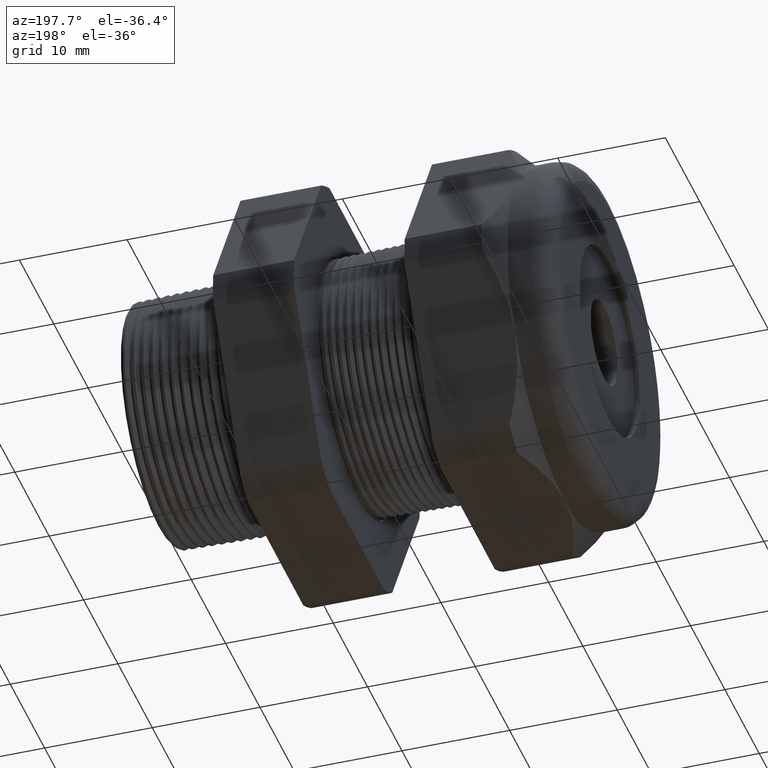
[diagram: clean part render]
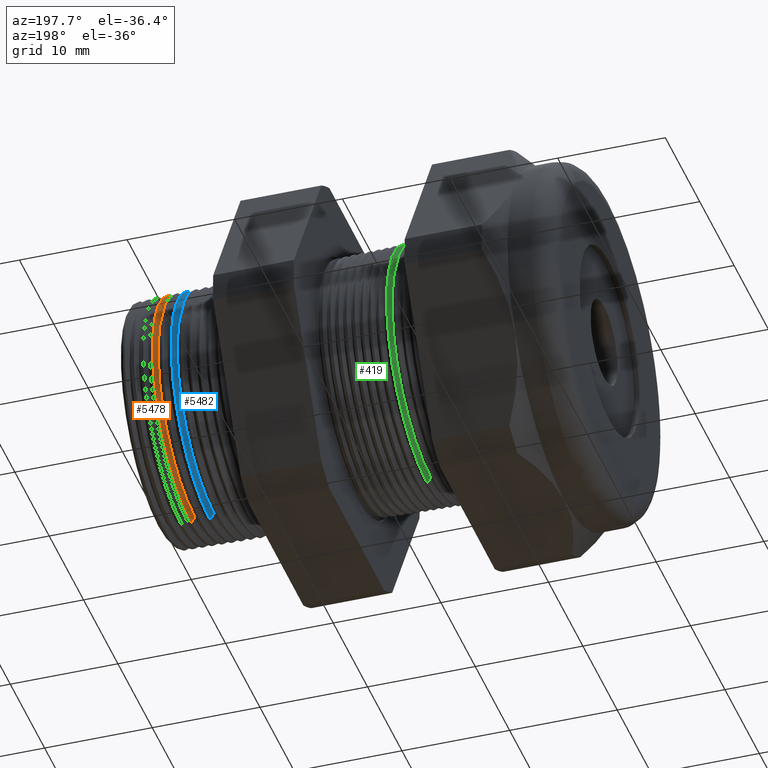
[diagram: same view with three faces highlighted in distinct colors, each labeled with its STEP entity id]
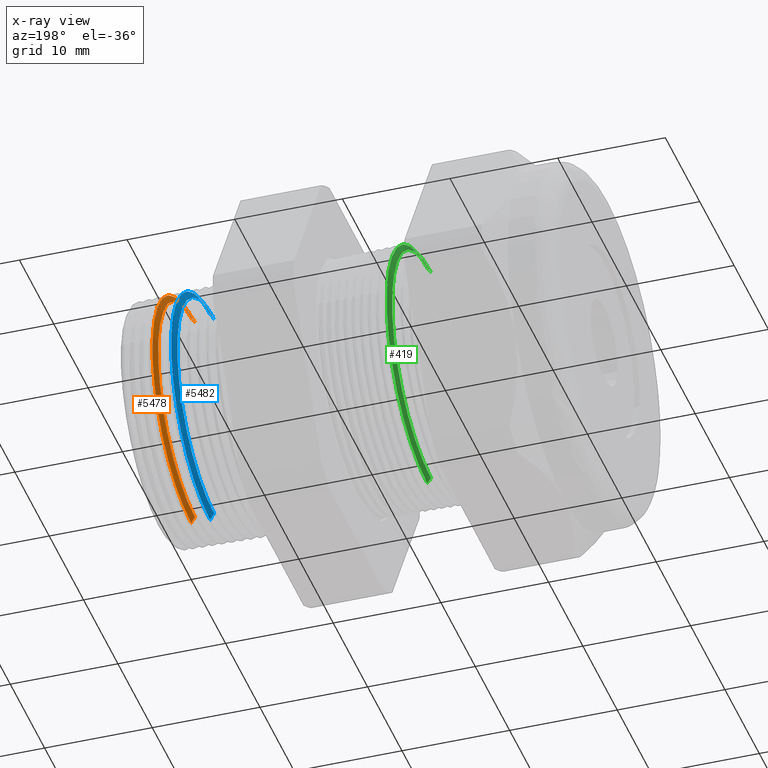
[diagram: x-ray of the same camera — body ghosted, the three highlighted faces saturated]
A machine part, auxiliary view with three faces highlighted in distinct colors.
The next image is the same camera in x-ray (body ghosted, the three faces saturated) — at least one of them is partly hidden behind the body in this view.
Their STEP definitions:

[orange] entity #5478 — the highlighted conical surface has half-angle 58.5 deg.
#3663 = CARTESIAN_POINT ( 'NONE',  ( -0.01347073567907519600, 5.299305649514591300E-017, -0.4212184895733915900 ) ) ;
#3755 = DIRECTION ( 'NONE',  ( 0.5224985647159347000, 0.0000000000000000000, -0.8526401643541008400 ) ) ;
#3756 = VECTOR ( 'NONE', #3755, 39.37007874015748100 ) ;
#3757 = CARTESIAN_POINT ( 'NONE',  ( -0.01347073567907519600, 0.0000000000000000000, -0.4212184895733915900 ) ) ;
#3758 = LINE ( 'NONE', #3757, #3756 ) ;
#3759 = CARTESIAN_POINT ( 'NONE',  ( 0.0002070154264371303800, 5.431780665247218800E-017, -0.4435385507910555300 ) ) ;
#3760 = DIRECTION ( 'NONE',  ( 0.0000000000000000000, 0.0000000000000000000, -1.000000000000000000 ) ) ;
#3761 = DIRECTION ( 'NONE',  ( -1.000000000000000000, 0.0000000000000000000, 0.0000000000000000000 ) ) ;
#3762 = CARTESIAN_POINT ( 'NONE',  ( 0.0002070154264371303800, 0.0000000000000000000, 0.0000000000000000000 ) ) ;
#3763 = AXIS2_PLACEMENT_3D ( 'NONE', #3762, #3761, #3760 ) ;
#3764 = CIRCLE ( 'NONE', #3763, 0.4435385507910555300 ) ;
#3765 = CARTESIAN_POINT ( 'NONE',  ( 0.0002070154264371303800, 0.0000000000000000000, 0.4435385507910555300 ) ) ;
#3766 = DIRECTION ( 'NONE',  ( 0.5224985647159347000, 1.044183048100722800E-016, 0.8526401643541008400 ) ) ;
#3767 = VECTOR ( 'NONE', #3766, 39.37007874015748100 ) ;
#3768 = CARTESIAN_POINT ( 'NONE',  ( -0.01347073567907519600, 5.158438749977368000E-017, 0.4212184895733915900 ) ) ;
#3769 = LINE ( 'NONE', #3768, #3767 ) ;
#3782 = CARTESIAN_POINT ( 'NONE',  ( -0.01347073567907519600, 0.0000000000000000000, 0.4212184895733915900 ) ) ;
#3783 = DIRECTION ( 'NONE',  ( 0.0000000000000000000, 0.0000000000000000000, -1.000000000000000000 ) ) ;
#3784 = DIRECTION ( 'NONE',  ( 1.000000000000000000, 0.0000000000000000000, 0.0000000000000000000 ) ) ;
#3785 = CARTESIAN_POINT ( 'NONE',  ( -0.01347073567907519600, 0.0000000000000000000, 0.0000000000000000000 ) ) ;
#3786 = AXIS2_PLACEMENT_3D ( 'NONE', #3785, #3784, #3783 ) ;
#3787 = CIRCLE ( 'NONE', #3786, 0.4212184895733915900 ) ;
#3858 = DIRECTION ( 'NONE',  ( 0.0000000000000000000, 0.0000000000000000000, -1.000000000000000000 ) ) ;
#3859 = DIRECTION ( 'NONE',  ( 1.000000000000000000, 0.0000000000000000000, 0.0000000000000000000 ) ) ;
#3860 = CARTESIAN_POINT ( 'NONE',  ( -0.01347073567907519600, 0.0000000000000000000, 0.0000000000000000000 ) ) ;
#3861 = AXIS2_PLACEMENT_3D ( 'NONE', #3860, #3859, #3858 ) ;
#3862 = CONICAL_SURFACE ( 'NONE', #3861, 0.4212184895733915900, 1.021017612416699400 ) ;
#3867 = FACE_OUTER_BOUND ( 'NONE', #5431, .T. ) ;
#5370 = VERTEX_POINT ( 'NONE', #3663 ) ;
#5420 = ORIENTED_EDGE ( 'NONE', *, *, #5421, .T. ) ;
#5421 = EDGE_CURVE ( 'NONE', #5444, #5422, #3769, .T. ) ;
#5422 = VERTEX_POINT ( 'NONE', #3765 ) ;
#5423 = ORIENTED_EDGE ( 'NONE', *, *, #5424, .T. ) ;
#5424 = EDGE_CURVE ( 'NONE', #5422, #5425, #3764, .T. ) ;
#5425 = VERTEX_POINT ( 'NONE', #3759 ) ;
#5426 = ORIENTED_EDGE ( 'NONE', *, *, #5427, .F. ) ;
#5427 = EDGE_CURVE ( 'NONE', #5370, #5425, #3758, .T. ) ;
#5431 = EDGE_LOOP ( 'NONE', ( #5442, #5420, #5423, #5426 ) ) ;
#5442 = ORIENTED_EDGE ( 'NONE', *, *, #5443, .T. ) ;
#5443 = EDGE_CURVE ( 'NONE', #5370, #5444, #3787, .T. ) ;
#5444 = VERTEX_POINT ( 'NONE', #3782 ) ;
#5478 = ADVANCED_FACE ( 'NONE', ( #3867 ), #3862, .T. ) ;

[blue] entity #5482 — the highlighted conical surface has half-angle 58.5 deg.
#3650 = CIRCLE ( 'NONE', #3713, 0.4453426159128154900 ) ;
#3651 = CARTESIAN_POINT ( 'NONE',  ( -0.06868745204509199600, 0.0000000000000000000, 0.4453426159128154300 ) ) ;
#3652 = DIRECTION ( 'NONE',  ( 0.5224985647159347000, 1.044183048100722800E-016, 0.8526401643541008400 ) ) ;
#3653 = VECTOR ( 'NONE', #3652, 39.37007874015748100 ) ;
#3654 = CARTESIAN_POINT ( 'NONE',  ( -0.08347073567907520300, 5.158438749977368000E-017, 0.4212184895733915900 ) ) ;
#3655 = LINE ( 'NONE', #3654, #3653 ) ;
#3656 = CARTESIAN_POINT ( 'NONE',  ( -0.08347073567907520300, 0.0000000000000000000, 0.4212184895733915900 ) ) ;
#3657 = CARTESIAN_POINT ( 'NONE',  ( -0.08347073567907520300, 5.310691508083136200E-017, -0.4212184895733915900 ) ) ;
#3658 = DIRECTION ( 'NONE',  ( 0.0000000000000000000, 0.0000000000000000000, -1.000000000000000000 ) ) ;
#3659 = DIRECTION ( 'NONE',  ( 1.000000000000000000, 0.0000000000000000000, 0.0000000000000000000 ) ) ;
#3660 = CARTESIAN_POINT ( 'NONE',  ( -0.08347073567907520300, 0.0000000000000000000, 0.0000000000000000000 ) ) ;
#3661 = AXIS2_PLACEMENT_3D ( 'NONE', #3660, #3659, #3658 ) ;
#3662 = CIRCLE ( 'NONE', #3661, 0.4212184895733915900 ) ;
#3705 = DIRECTION ( 'NONE',  ( 0.5224985647159347000, 0.0000000000000000000, -0.8526401643541008400 ) ) ;
#3706 = VECTOR ( 'NONE', #3705, 39.37007874015748100 ) ;
#3707 = CARTESIAN_POINT ( 'NONE',  ( -0.08347073567907520300, 0.0000000000000000000, -0.4212184895733915900 ) ) ;
#3708 = LINE ( 'NONE', #3707, #3706 ) ;
#3709 = CARTESIAN_POINT ( 'NONE',  ( -0.06868745204509199600, 5.453874091015385300E-017, -0.4453426159128154300 ) ) ;
#3710 = DIRECTION ( 'NONE',  ( 0.0000000000000000000, 0.0000000000000000000, -1.000000000000000000 ) ) ;
#3711 = DIRECTION ( 'NONE',  ( -1.000000000000000000, 0.0000000000000000000, 0.0000000000000000000 ) ) ;
#3712 = CARTESIAN_POINT ( 'NONE',  ( -0.06868745204509199600, 0.0000000000000000000, 0.0000000000000000000 ) ) ;
#3713 = AXIS2_PLACEMENT_3D ( 'NONE', #3712, #3711, #3710 ) ;
#3846 = DIRECTION ( 'NONE',  ( 0.0000000000000000000, 0.0000000000000000000, -1.000000000000000000 ) ) ;
#3847 = DIRECTION ( 'NONE',  ( 1.000000000000000000, 0.0000000000000000000, 0.0000000000000000000 ) ) ;
#3848 = CARTESIAN_POINT ( 'NONE',  ( -0.08347073567907520300, 0.0000000000000000000, 0.0000000000000000000 ) ) ;
#3849 = AXIS2_PLACEMENT_3D ( 'NONE', #3848, #3847, #3846 ) ;
#3851 = CONICAL_SURFACE ( 'NONE', #3849, 0.4212184895733915900, 1.021017612416699400 ) ;
#3852 = FACE_OUTER_BOUND ( 'NONE', #5405, .T. ) ;
#5371 = ORIENTED_EDGE ( 'NONE', *, *, #5372, .T. ) ;
#5372 = EDGE_CURVE ( 'NONE', #5373, #5374, #3662, .T. ) ;
#5373 = VERTEX_POINT ( 'NONE', #3657 ) ;
#5374 = VERTEX_POINT ( 'NONE', #3656 ) ;
#5375 = ORIENTED_EDGE ( 'NONE', *, *, #5376, .T. ) ;
#5376 = EDGE_CURVE ( 'NONE', #5374, #5377, #3655, .T. ) ;
#5377 = VERTEX_POINT ( 'NONE', #3651 ) ;
#5378 = ORIENTED_EDGE ( 'NONE', *, *, #5379, .T. ) ;
#5379 = EDGE_CURVE ( 'NONE', #5377, #5380, #3650, .T. ) ;
#5380 = VERTEX_POINT ( 'NONE', #3709 ) ;
#5381 = ORIENTED_EDGE ( 'NONE', *, *, #5382, .F. ) ;
#5382 = EDGE_CURVE ( 'NONE', #5373, #5380, #3708, .T. ) ;
#5405 = EDGE_LOOP ( 'NONE', ( #5371, #5375, #5378, #5381 ) ) ;
#5482 = ADVANCED_FACE ( 'NONE', ( #3852 ), #3851, .T. ) ;

[green] entity #419 — the highlighted conical surface has half-angle 58.5 deg.
#45 = EDGE_CURVE ( 'NONE', #46, #414, #564, .T. ) ;
#46 = VERTEX_POINT ( 'NONE', #559 ) ;
#48 = VERTEX_POINT ( 'NONE', #617 ) ;
#49 = ORIENTED_EDGE ( 'NONE', *, *, #45, .T. ) ;
#62 = VERTEX_POINT ( 'NONE', #594 ) ;
#72 = ORIENTED_EDGE ( 'NONE', *, *, #402, .T. ) ;
#402 = EDGE_CURVE ( 'NONE', #48, #62, #1262, .T. ) ;
#410 = ORIENTED_EDGE ( 'NONE', *, *, #413, .F. ) ;
#412 = EDGE_CURVE ( 'NONE', #62, #46, #1304, .T. ) ;
#413 = EDGE_CURVE ( 'NONE', #48, #414, #1300, .T. ) ;
#414 = VERTEX_POINT ( 'NONE', #1296 ) ;
#415 = ORIENTED_EDGE ( 'NONE', *, *, #412, .T. ) ;
#418 = EDGE_LOOP ( 'NONE', ( #72, #415, #49, #410 ) ) ;
#419 = ADVANCED_FACE ( 'NONE', ( #1289 ), #1288, .T. ) ;
#559 = CARTESIAN_POINT ( 'NONE',  ( -0.8633525379665555300, 0.0000000000000000000, 0.4661516535265203800 ) ) ;
#560 = DIRECTION ( 'NONE',  ( 0.0000000000000000000, 0.0000000000000000000, -1.000000000000000000 ) ) ;
#561 = DIRECTION ( 'NONE',  ( -1.000000000000000000, 0.0000000000000000000, 0.0000000000000000000 ) ) ;
#562 = CARTESIAN_POINT ( 'NONE',  ( -0.8633525379665555300, 0.0000000000000000000, 0.0000000000000000000 ) ) ;
#563 = AXIS2_PLACEMENT_3D ( 'NONE', #562, #561, #560 ) ;
#564 = CIRCLE ( 'NONE', #563, 0.4661516535265203300 ) ;
#594 = CARTESIAN_POINT ( 'NONE',  ( -0.8765405736958171700, 0.0000000000000000000, 0.4446307351718083400 ) ) ;
#617 = CARTESIAN_POINT ( 'NONE',  ( -0.8765405736958171700, 5.580979396460794700E-017, -0.4446307351718083400 ) ) ;
#1259 = DIRECTION ( 'NONE',  ( 0.0000000000000000000, 0.0000000000000000000, -1.000000000000000000 ) ) ;
#1260 = DIRECTION ( 'NONE',  ( 1.000000000000000000, 0.0000000000000000000, 0.0000000000000000000 ) ) ;
#1261 = AXIS2_PLACEMENT_3D ( 'NONE', #1267, #1260, #1259 ) ;
#1262 = CIRCLE ( 'NONE', #1261, 0.4446307351718083400 ) ;
#1267 = CARTESIAN_POINT ( 'NONE',  ( -0.8765405736958171700, 0.0000000000000000000, 0.0000000000000000000 ) ) ;
#1283 = DIRECTION ( 'NONE',  ( 0.0000000000000000000, 0.0000000000000000000, -1.000000000000000000 ) ) ;
#1284 = DIRECTION ( 'NONE',  ( 1.000000000000000000, 0.0000000000000000000, 0.0000000000000000000 ) ) ;
#1285 = CARTESIAN_POINT ( 'NONE',  ( -0.8765405736958171700, 0.0000000000000000000, 0.0000000000000000000 ) ) ;
#1286 = AXIS2_PLACEMENT_3D ( 'NONE', #1285, #1284, #1283 ) ;
#1288 = CONICAL_SURFACE ( 'NONE', #1286, 0.4446307351718083400, 1.021017612416699200 ) ;
#1289 = FACE_OUTER_BOUND ( 'NONE', #418, .T. ) ;
#1296 = CARTESIAN_POINT ( 'NONE',  ( -0.8633525379665555300, 5.708711304084992300E-017, -0.4661516535265203800 ) ) ;
#1297 = DIRECTION ( 'NONE',  ( 0.5224985647159348100, 0.0000000000000000000, -0.8526401643541007300 ) ) ;
#1298 = VECTOR ( 'NONE', #1297, 39.37007874015748900 ) ;
#1299 = CARTESIAN_POINT ( 'NONE',  ( -0.8765405736958171700, 0.0000000000000000000, -0.4446307351718083400 ) ) ;
#1300 = LINE ( 'NONE', #1299, #1298 ) ;
#1301 = DIRECTION ( 'NONE',  ( 0.5224985647159348100, 1.044183048100722500E-016, 0.8526401643541007300 ) ) ;
#1302 = VECTOR ( 'NONE', #1301, 39.37007874015748900 ) ;
#1303 = CARTESIAN_POINT ( 'NONE',  ( -0.8765405736958171700, 5.445156066306895900E-017, 0.4446307351718083400 ) ) ;
#1304 = LINE ( 'NONE', #1303, #1302 ) ;